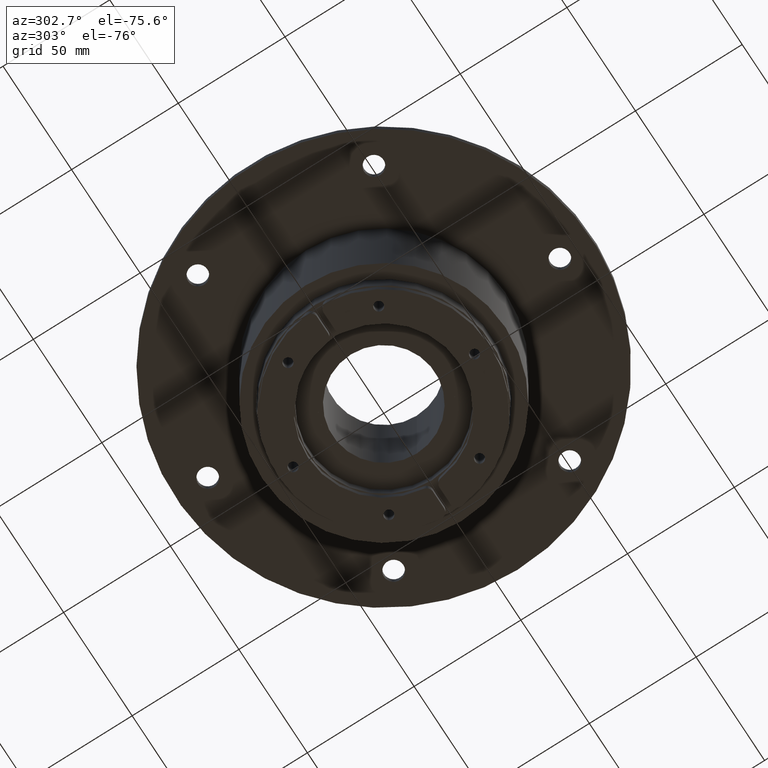
[diagram: clean part render]
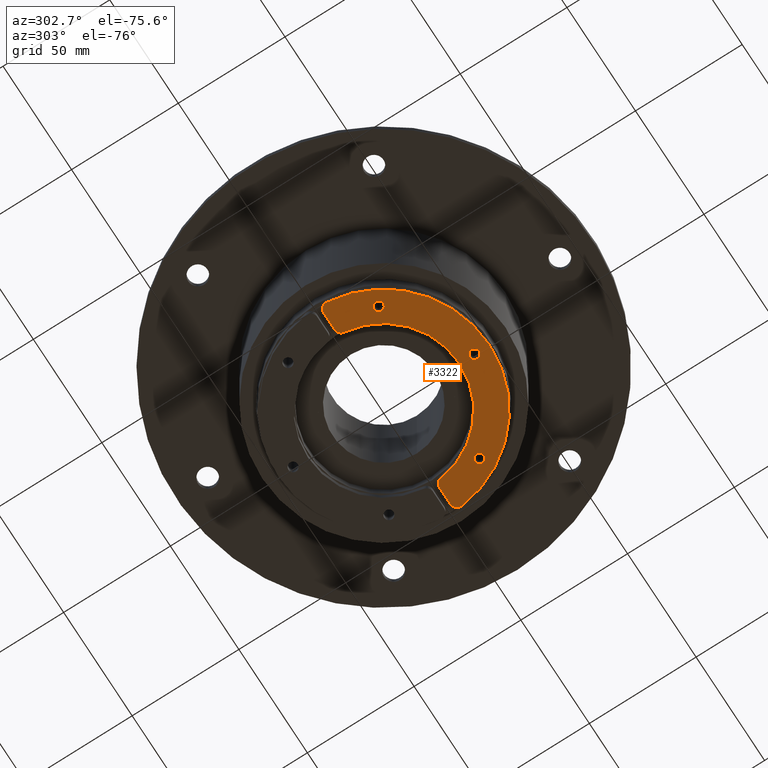
[diagram: same view with one face highlighted and labeled with its STEP entity id]
A machine part, auxiliary view. The second image highlights one B-rep face of the part: STEP entity #3322.
In plain terms, the highlighted planar face has unit normal (0, -0, 1).
Its self-contained STEP definition (entity closure, byte-faithful):
#2945=CARTESIAN_POINT('',(90.106366412724924,21.446012050202029,0.0));
#2946=VERTEX_POINT('',#2945);
#2947=CARTESIAN_POINT('',(87.939366412724937,21.446012050202029,0.0));
#2948=DIRECTION('',(0.0,0.0,1.0));
#2949=DIRECTION('',(-1.0,0.0,0.0));
#2950=AXIS2_PLACEMENT_3D('',#2947,#2948,#2949);
#2951=CIRCLE('',#2950,2.166999999999999);
#2952=EDGE_CURVE('',#2946,#2946,#2951,.T.);
#2973=CARTESIAN_POINT('',(53.300286751886432,42.696012050202029,0.0));
#2974=VERTEX_POINT('',#2973);
#2975=CARTESIAN_POINT('',(51.133286751886438,42.696012050202029,0.0));
#2976=DIRECTION('',(0.0,0.0,1.0));
#2977=DIRECTION('',(-1.0,0.0,0.0));
#2978=AXIS2_PLACEMENT_3D('',#2975,#2976,#2977);
#2979=CIRCLE('',#2978,2.166999999999999);
#2980=EDGE_CURVE('',#2974,#2974,#2979,.T.);
#3001=CARTESIAN_POINT('',(16.494207091047826,21.446012050201716,0.0));
#3002=VERTEX_POINT('',#3001);
#3003=CARTESIAN_POINT('',(14.327207091047827,21.446012050201716,0.0));
#3004=DIRECTION('',(0.0,0.0,1.0));
#3005=DIRECTION('',(-1.0,0.0,0.0));
#3006=AXIS2_PLACEMENT_3D('',#3003,#3004,#3005);
#3007=CIRCLE('',#3006,2.166999999999999);
#3008=EDGE_CURVE('',#3002,#3002,#3007,.T.);
#3018=CARTESIAN_POINT('',(4.851540890261987,1.696012050202029,0.0));
#3019=VERTEX_POINT('',#3018);
#3020=CARTESIAN_POINT('',(1.86562180241534,4.986334630848539,0.0));
#3021=VERTEX_POINT('',#3020);
#3022=CARTESIAN_POINT('',(4.851540890261987,4.696012050202029,0.0));
#3023=DIRECTION('',(0.0,0.0,-1.0));
#3024=DIRECTION('',(0.995306362615538,-0.096774193548836,0.0));
#3025=AXIS2_PLACEMENT_3D('',#3022,#3023,#3024);
#3026=CIRCLE('',#3025,3.0);
#3027=EDGE_CURVE('',#3019,#3021,#3026,.T.);
#3060=CARTESIAN_POINT('',(100.40095170135785,4.986334630847095,0.0));
#3061=VERTEX_POINT('',#3060);
#3062=CARTESIAN_POINT('',(51.133286751886516,0.196012050202029,0.0));
#3063=DIRECTION('',(0.0,0.0,-1.0));
#3064=DIRECTION('',(-0.995306362615582,-0.096774193548385,0.0));
#3065=AXIS2_PLACEMENT_3D('',#3062,#3063,#3064);
#3066=CIRCLE('',#3065,49.500000000000014);
#3067=EDGE_CURVE('',#3021,#3061,#3066,.T.);
#3093=CARTESIAN_POINT('',(97.415032613511116,1.696012050202029,0.0));
#3094=VERTEX_POINT('',#3093);
#3095=CARTESIAN_POINT('',(97.415032613511116,4.696012050202029,0.0));
#3096=DIRECTION('',(0.0,0.0,-1.0));
#3097=DIRECTION('',(0.0,1.0,0.0));
#3098=AXIS2_PLACEMENT_3D('',#3095,#3096,#3097);
#3099=CIRCLE('',#3098,3.0);
#3100=EDGE_CURVE('',#3061,#3094,#3099,.T.);
#3126=CARTESIAN_POINT('',(89.369395340496851,1.696012050202029,0.0));
#3127=VERTEX_POINT('',#3126);
#3128=CARTESIAN_POINT('',(97.415032613511116,1.696012050202029,0.0));
#3129=DIRECTION('',(-1.0,0.0,0.0));
#3130=VECTOR('',#3129,8.045637273014265);
#3131=LINE('',#3128,#3130);
#3132=EDGE_CURVE('',#3094,#3127,#3131,.T.);
#3157=CARTESIAN_POINT('',(86.38995830761813,4.34536269955264,0.0));
#3158=VERTEX_POINT('',#3157);
#3159=CARTESIAN_POINT('',(89.369395340496851,4.696012050202029,0.0));
#3160=DIRECTION('',(0.0,0.0,-1.0));
#3161=DIRECTION('',(0.993145677626241,0.116883116883129,0.0));
#3162=AXIS2_PLACEMENT_3D('',#3159,#3160,#3161);
#3163=CIRCLE('',#3162,3.0);
#3164=EDGE_CURVE('',#3127,#3158,#3163,.T.);
#3190=CARTESIAN_POINT('',(15.876615196154964,4.34536269955268,0.0));
#3191=VERTEX_POINT('',#3190);
#3192=CARTESIAN_POINT('',(51.133286751886516,0.196012050202029,0.0));
#3193=DIRECTION('',(0.0,0.0,1.0));
#3194=DIRECTION('',(0.993145677626242,0.116883116883116,0.0));
#3195=AXIS2_PLACEMENT_3D('',#3192,#3193,#3194);
#3196=CIRCLE('',#3195,35.5);
#3197=EDGE_CURVE('',#3158,#3191,#3196,.T.);
#3223=CARTESIAN_POINT('',(12.897178163276237,1.696012050202029,0.0));
#3224=VERTEX_POINT('',#3223);
#3225=CARTESIAN_POINT('',(12.897178163276237,4.696012050202029,0.0));
#3226=DIRECTION('',(0.0,0.0,-1.0));
#3227=DIRECTION('',(0.0,1.0,0.0));
#3228=AXIS2_PLACEMENT_3D('',#3225,#3226,#3227);
#3229=CIRCLE('',#3228,3.0);
#3230=EDGE_CURVE('',#3191,#3224,#3229,.T.);
#3256=CARTESIAN_POINT('',(12.897178163276237,1.696012050202029,0.0));
#3257=DIRECTION('',(-1.0,0.0,0.0));
#3258=VECTOR('',#3257,8.045637273014251);
#3259=LINE('',#3256,#3258);
#3260=EDGE_CURVE('',#3224,#3019,#3259,.T.);
#3298=CARTESIAN_POINT('',(51.133286751886516,25.986891138892258,0.0));
#3299=DIRECTION('',(0.0,0.0,1.0));
#3300=DIRECTION('',(1.0,0.0,0.0));
#3301=AXIS2_PLACEMENT_3D('',#3298,#3299,#3300);
#3302=PLANE('',#3301);
#3303=ORIENTED_EDGE('',*,*,#3260,.T.);
#3304=ORIENTED_EDGE('',*,*,#3027,.T.);
#3305=ORIENTED_EDGE('',*,*,#3067,.T.);
#3306=ORIENTED_EDGE('',*,*,#3100,.T.);
#3307=ORIENTED_EDGE('',*,*,#3132,.T.);
#3308=ORIENTED_EDGE('',*,*,#3164,.T.);
#3309=ORIENTED_EDGE('',*,*,#3197,.T.);
#3310=ORIENTED_EDGE('',*,*,#3230,.T.);
#3311=EDGE_LOOP('',(#3303,#3304,#3305,#3306,#3307,#3308,#3309,#3310));
#3312=FACE_OUTER_BOUND('',#3311,.T.);
#3313=ORIENTED_EDGE('',*,*,#2952,.T.);
#3314=EDGE_LOOP('',(#3313));
#3315=FACE_BOUND('',#3314,.T.);
#3316=ORIENTED_EDGE('',*,*,#2980,.T.);
#3317=EDGE_LOOP('',(#3316));
#3318=FACE_BOUND('',#3317,.T.);
#3319=ORIENTED_EDGE('',*,*,#3008,.T.);
#3320=EDGE_LOOP('',(#3319));
#3321=FACE_BOUND('',#3320,.T.);
#3322=ADVANCED_FACE('',(#3312,#3315,#3318,#3321),#3302,.F.);